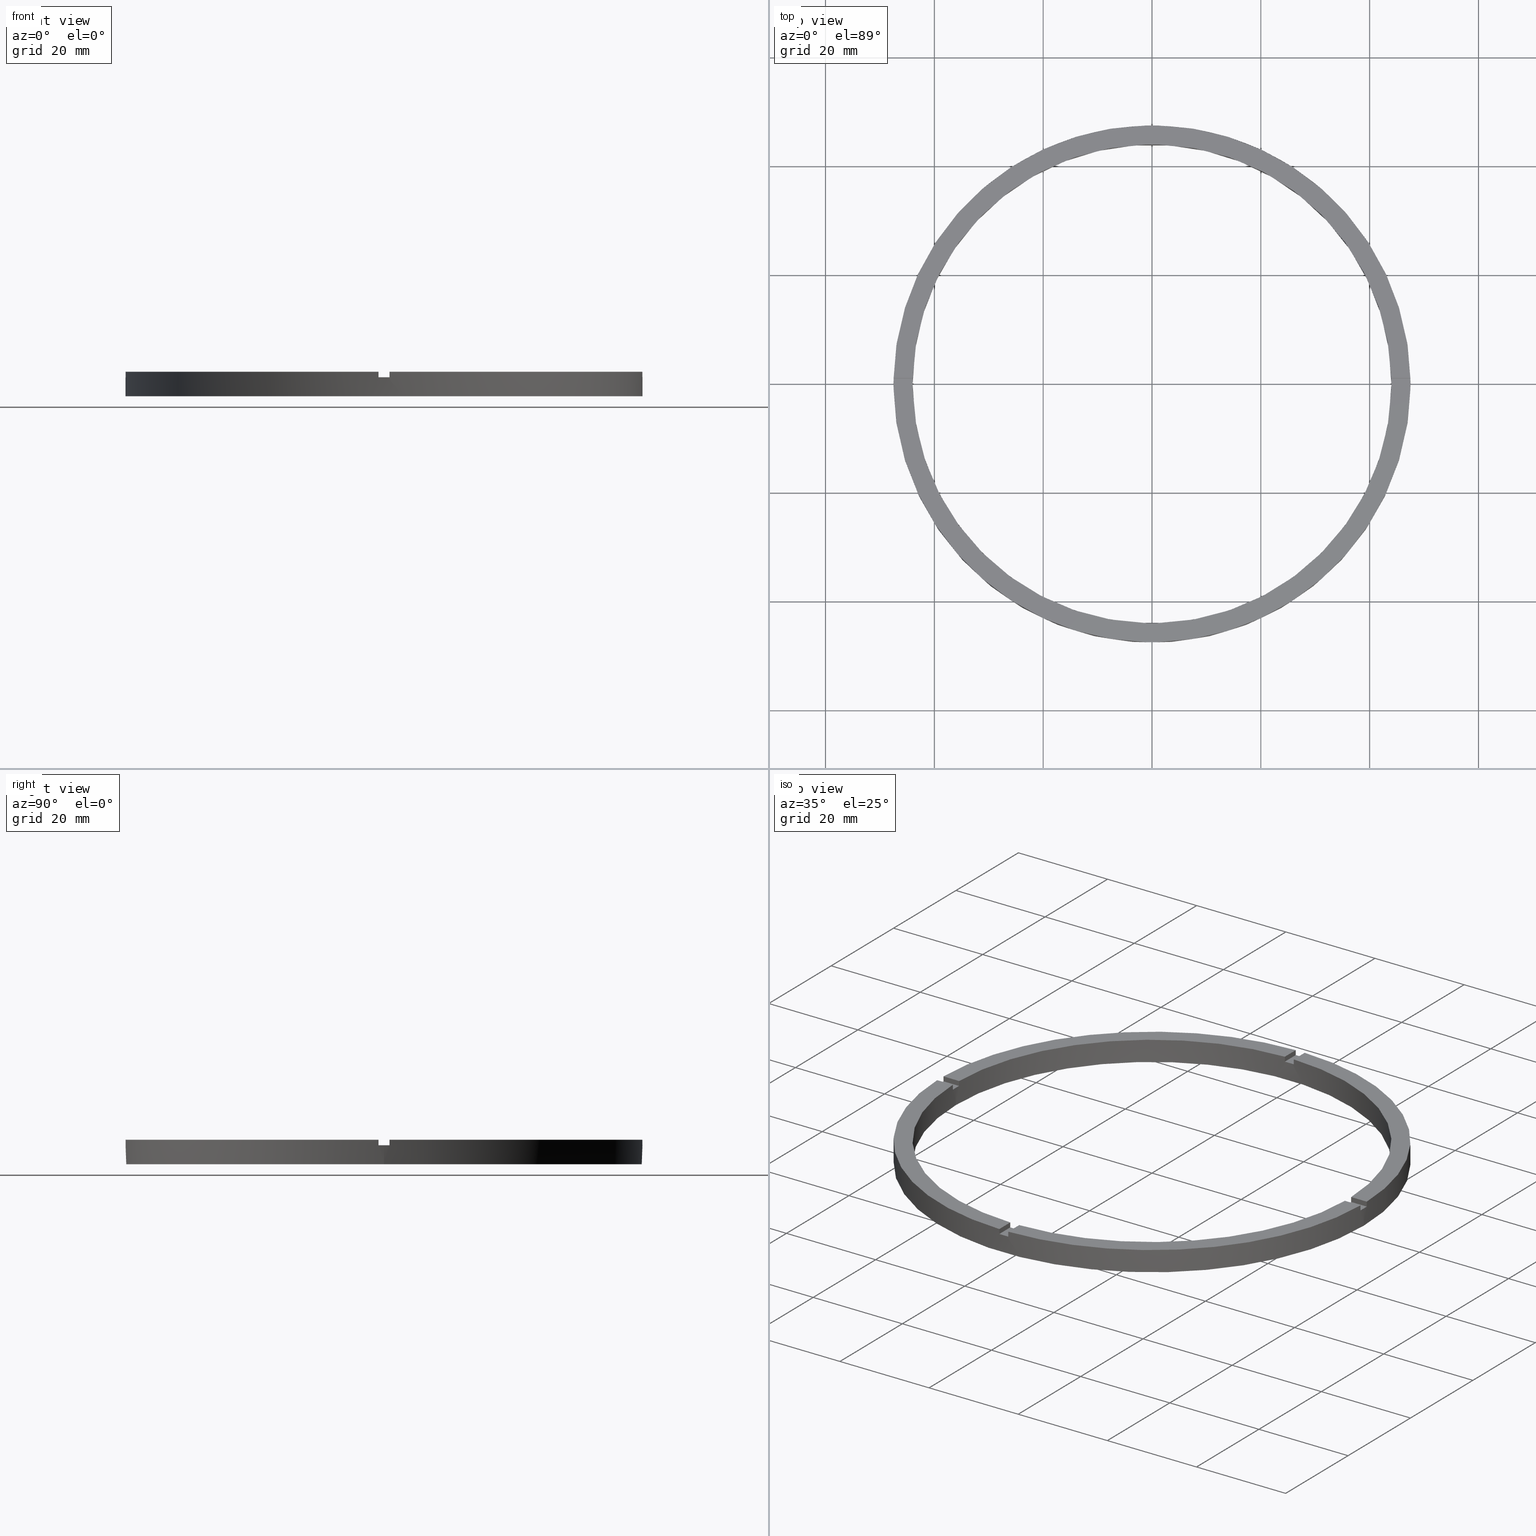
[diagram: canonical four-view strip — front | top / right | iso, engineering-drawing reading convention]
A machine part, canonical four-view strip (front | top / right | iso — engineering-drawing reading convention). The complete STEP part file that produces these views, byte-faithful:
ISO-10303-21;
HEADER;
FILE_DESCRIPTION (( 'STEP AP203' ),
    '1' );
FILE_NAME ('514195.step',
    '2024-12-26T02:46:52',
    ( 'MSI' ),
    ( '' ),
    'SwSTEP 2.0',
    'SolidWorks 2020',
    '' );
FILE_SCHEMA (( 'CONFIG_CONTROL_DESIGN' ));
ENDSEC;

DATA;
#1 = EDGE_CURVE ( 'NONE', #493, #697, #99, .T. ) ;
#2 = CYLINDRICAL_SURFACE ( 'NONE', #44, 44.00000000000000000 ) ;
#3 = DIRECTION ( 'NONE',  ( -0.000000000000000000, -1.000000000000000000, -0.000000000000000000 ) ) ;
#4 = LINE ( 'NONE', #137, #772 ) ;
#5 = CC_DESIGN_APPROVAL ( #605, ( #665 ) ) ;
#6 = EDGE_CURVE ( 'NONE', #697, #479, #370, .T. ) ;
#7 = LINE ( 'NONE', #95, #544 ) ;
#8 = DIRECTION ( 'NONE',  ( 0.000000000000000000, 0.000000000000000000, 1.000000000000000000 ) ) ;
#9 = FACE_OUTER_BOUND ( 'NONE', #210, .T. ) ;
#10 = CARTESIAN_POINT ( 'NONE',  ( -43.98863489584553577, -1.000000000000029976, 3.499999999999999556 ) ) ;
#11 = CARTESIAN_POINT ( 'NONE',  ( -1.000000000000158096, -43.98863489584553577, 4.500000000000000000 ) ) ;
#12 = LINE ( 'NONE', #51, #543 ) ;
#13 = LINE ( 'NONE', #62, #141 ) ;
#14 = PLANE ( 'NONE',  #666 ) ;
#15 = DIRECTION ( 'NONE',  ( 0.000000000000000000, 0.000000000000000000, 1.000000000000000000 ) ) ;
#16 = APPROVAL_DATE_TIME ( #585, #264 ) ;
#17 = PERSON_AND_ORGANIZATION ( #266, #31 ) ;
#18 = CALENDAR_DATE ( 2024, 26, 12 ) ;
#19 = AXIS2_PLACEMENT_3D ( 'NONE', #603, #412, #515 ) ;
#20 = CARTESIAN_POINT ( 'NONE',  ( 43.98863489584553577, -1.000000000000155875, 4.500000000000000000 ) ) ;
#21 = CARTESIAN_POINT ( 'NONE',  ( 0.000000000000000000, 0.000000000000000000, 4.500000000000000000 ) ) ;
#22 = CARTESIAN_POINT ( 'NONE',  ( 0.000000000000000000, 0.000000000000000000, 0.000000000000000000 ) ) ;
#23 = APPROVAL_PERSON_ORGANIZATION ( #298, #519, #548 ) ;
#24 = COORDINATED_UNIVERSAL_TIME_OFFSET ( 8, 0, .AHEAD. ) ;
#25 = DIRECTION ( 'NONE',  ( -0.000000000000000000, -0.000000000000000000, -1.000000000000000000 ) ) ;
#26 = APPROVAL_STATUS ( 'not_yet_approved' ) ;
#27 = CALENDAR_DATE ( 2024, 26, 12 ) ;
#28 = EDGE_CURVE ( 'NONE', #480, #455, #355, .T. ) ;
#29 = CALENDAR_DATE ( 2024, 26, 12 ) ;
#30 = ADVANCED_FACE ( 'NONE', ( #362 ), #188, .F. ) ;
#31 = ORGANIZATION ( 'δָ��', 'δָ��', '' ) ;
#32 = CARTESIAN_POINT ( 'NONE',  ( 0.000000000000000000, 0.000000000000000000, 3.499999999999999556 ) ) ;
#33 = EDGE_CURVE ( 'NONE', #207, #458, #613, .T. ) ;
#34 = COORDINATED_UNIVERSAL_TIME_OFFSET ( 8, 0, .AHEAD. ) ;
#35 = CARTESIAN_POINT ( 'NONE',  ( 0.000000000000000000, 0.000000000000000000, 0.000000000000000000 ) ) ;
#36 = ADVANCED_FACE ( 'NONE', ( #634 ), #652, .T. ) ;
#37 = CARTESIAN_POINT ( 'NONE',  ( 0.000000000000000000, 0.000000000000000000, 3.499999999999999556 ) ) ;
#38 = EDGE_CURVE ( 'NONE', #751, #335, #350, .T. ) ;
#39 = CARTESIAN_POINT ( 'NONE',  ( -47.48947251760120736, 0.9999999999999694689, 4.500000000000000000 ) ) ;
#40 = APPROVAL_PERSON_ORGANIZATION ( #567, #605, #373 ) ;
#41 = CARTESIAN_POINT ( 'NONE',  ( 37.50000000000000000, 0.9999999999998436806, 3.499999999999999556 ) ) ;
#42 = CARTESIAN_POINT ( 'NONE',  ( 0.000000000000000000, 0.000000000000000000, 4.500000000000000000 ) ) ;
#43 = CC_DESIGN_DATE_AND_TIME_ASSIGNMENT ( #551, #152, ( #228 ) ) ;
#44 = AXIS2_PLACEMENT_3D ( 'NONE', #106, #563, #436 ) ;
#45 = DIRECTION ( 'NONE',  ( -0.000000000000000000, -0.000000000000000000, -1.000000000000000000 ) ) ;
#46 = EDGE_CURVE ( 'NONE', #205, #401, #637, .T. ) ;
#47 = PRODUCT_DEFINITION_SHAPE ( 'NONE', 'NONE',  #665 ) ;
#48 = DIRECTION ( 'NONE',  ( 1.000000000000000000, 0.000000000000000000, 0.000000000000000000 ) ) ;
#49 = CARTESIAN_POINT ( 'NONE',  ( 47.48947251760121446, 0.9999999999998443467, 3.499999999999999556 ) ) ;
#50 = CARTESIAN_POINT ( 'NONE',  ( -44.00000000000000000, 0.000000000000000000, 3.499999999999999556 ) ) ;
#51 = CARTESIAN_POINT ( 'NONE',  ( 47.48947251760120736, -1.000000000000155653, 4.500000000000000000 ) ) ;
#52 = CARTESIAN_POINT ( 'NONE',  ( 37.50000000000000000, -1.000000000000156319, 3.499999999999999556 ) ) ;
#53 = PLANE ( 'NONE',  #114 ) ;
#54 = COORDINATED_UNIVERSAL_TIME_OFFSET ( 8, 0, .AHEAD. ) ;
#55 = ADVANCED_FACE ( 'NONE', ( #372 ), #625, .F. ) ;
#56 = CALENDAR_DATE ( 2024, 26, 12 ) ;
#57 = EDGE_CURVE ( 'NONE', #207, #148, #86, .T. ) ;
#58 = CALENDAR_DATE ( 2024, 26, 12 ) ;
#59 = DIRECTION ( 'NONE',  ( 1.000000000000000000, 1.301042606982605074E-16, 0.000000000000000000 ) ) ;
#60 = COORDINATED_UNIVERSAL_TIME_OFFSET ( 8, 0, .AHEAD. ) ;
#61 = AXIS2_PLACEMENT_3D ( 'NONE', #119, #185, #77 ) ;
#62 = CARTESIAN_POINT ( 'NONE',  ( 0.9999999999999735767, 37.50000000000000711, 3.499999999999999556 ) ) ;
#63 = DIRECTION ( 'NONE',  ( -0.000000000000000000, 0.000000000000000000, 1.000000000000000000 ) ) ;
#64 = EDGE_CURVE ( 'NONE', #743, #190, #88, .T. ) ;
#65 = EDGE_LOOP ( 'NONE', ( #498, #501, #688, #471 ) ) ;
#66 = CARTESIAN_POINT ( 'NONE',  ( 0.000000000000000000, 0.000000000000000000, 4.500000000000000000 ) ) ;
#67 = ORIENTED_EDGE ( 'NONE', *, *, #69, .F. ) ;
#68 = ORIENTED_EDGE ( 'NONE', *, *, #64, .T. ) ;
#69 = EDGE_CURVE ( 'NONE', #743, #478, #366, .T. ) ;
#70 = CARTESIAN_POINT ( 'NONE',  ( -47.50000000000000711, 0.000000000000000000, 0.000000000000000000 ) ) ;
#71 = ORIENTED_EDGE ( 'NONE', *, *, #308, .T. ) ;
#72 = ADVANCED_FACE ( 'NONE', ( #105 ), #53, .F. ) ;
#73 = AXIS2_PLACEMENT_3D ( 'NONE', #219, #546, #534 ) ;
#74 = CARTESIAN_POINT ( 'NONE',  ( 0.000000000000000000, 0.000000000000000000, 4.500000000000000000 ) ) ;
#75 = ORIENTED_EDGE ( 'NONE', *, *, #622, .T. ) ;
#76 = DIRECTION ( 'NONE',  ( 1.301042606982605074E-16, -1.000000000000000000, 0.000000000000000000 ) ) ;
#77 = DIRECTION ( 'NONE',  ( 1.000000000000000000, 0.000000000000000000, 0.000000000000000000 ) ) ;
#78 = ORIENTED_EDGE ( 'NONE', *, *, #145, .F. ) ;
#79 = AXIS2_PLACEMENT_3D ( 'NONE', #363, #173, #102 ) ;
#80 = DIRECTION ( 'NONE',  ( 1.000000000000000000, -0.000000000000000000, 0.000000000000000000 ) ) ;
#81 = DIRECTION ( 'NONE',  ( 1.000000000000000000, 0.000000000000000000, 0.000000000000000000 ) ) ;
#82 = EDGE_CURVE ( 'NONE', #444, #192, #626, .T. ) ;
#83 = ORIENTED_EDGE ( 'NONE', *, *, #565, .F. ) ;
#84 = AXIS2_PLACEMENT_3D ( 'NONE', #42, #594, #349 ) ;
#85 = DIRECTION ( 'NONE',  ( 0.000000000000000000, 0.000000000000000000, 1.000000000000000000 ) ) ;
#86 = LINE ( 'NONE', #199, #617 ) ;
#87 = DIRECTION ( 'NONE',  ( 0.000000000000000000, 1.000000000000000000, 0.000000000000000000 ) ) ;
#88 = LINE ( 'NONE', #369, #619 ) ;
#89 = EDGE_CURVE ( 'NONE', #458, #712, #627, .T. ) ;
#90 = CARTESIAN_POINT ( 'NONE',  ( 0.9999999999998419042, -43.98863489584554287, 4.500000000000000000 ) ) ;
#91 = AXIS2_PLACEMENT_3D ( 'NONE', #364, #662, #608 ) ;
#92 = DIRECTION ( 'NONE',  ( 0.000000000000000000, 0.000000000000000000, 1.000000000000000000 ) ) ;
#93 = DIRECTION ( 'NONE',  ( 6.505213034913025371E-17, -1.000000000000000000, 0.000000000000000000 ) ) ;
#94 = VECTOR ( 'NONE', #574, 1000.000000000000000 ) ;
#95 = CARTESIAN_POINT ( 'NONE',  ( 0.9999999999999735767, 37.50000000000000711, 4.500000000000000000 ) ) ;
#96 = ORIENTED_EDGE ( 'NONE', *, *, #638, .F. ) ;
#97 = DIRECTION ( 'NONE',  ( 0.000000000000000000, 0.000000000000000000, 1.000000000000000000 ) ) ;
#98 = FACE_OUTER_BOUND ( 'NONE', #499, .T. ) ;
#99 = LINE ( 'NONE', #176, #610 ) ;
#100 = CARTESIAN_POINT ( 'NONE',  ( 0.000000000000000000, 0.000000000000000000, 4.500000000000000000 ) ) ;
#101 = ADVANCED_FACE ( 'NONE', ( #98 ), #698, .T. ) ;
#102 = DIRECTION ( 'NONE',  ( 1.000000000000000000, 0.000000000000000000, 0.000000000000000000 ) ) ;
#103 = DIRECTION ( 'NONE',  ( 1.000000000000000000, 0.000000000000000000, -0.000000000000000000 ) ) ;
#104 = DIRECTION ( 'NONE',  ( -0.000000000000000000, -0.000000000000000000, -1.000000000000000000 ) ) ;
#105 = FACE_OUTER_BOUND ( 'NONE', #427, .T. ) ;
#106 = CARTESIAN_POINT ( 'NONE',  ( 0.000000000000000000, 0.000000000000000000, 4.500000000000000000 ) ) ;
#107 = CIRCLE ( 'NONE', #486, 44.00000000000000000 ) ;
#108 = CARTESIAN_POINT ( 'NONE',  ( 0.000000000000000000, 0.000000000000000000, 3.499999999999999556 ) ) ;
#109 = EDGE_CURVE ( 'NONE', #186, #397, #118, .T. ) ;
#110 = EDGE_CURVE ( 'NONE', #324, #401, #379, .T. ) ;
#111 = VECTOR ( 'NONE', #268, 1000.000000000000000 ) ;
#112 = CIRCLE ( 'NONE', #79, 47.50000000000000711 ) ;
#113 = LINE ( 'NONE', #494, #143 ) ;
#114 = AXIS2_PLACEMENT_3D ( 'NONE', #132, #59, #763 ) ;
#115 = CARTESIAN_POINT ( 'NONE',  ( -1.000000000000158762, -37.50000000000018474, 3.499999999999999556 ) ) ;
#116 = CIRCLE ( 'NONE', #312, 44.00000000000000000 ) ;
#117 = EDGE_CURVE ( 'NONE', #741, #444, #640, .T. ) ;
#118 = LINE ( 'NONE', #448, #382 ) ;
#119 = CARTESIAN_POINT ( 'NONE',  ( 0.000000000000000000, 0.000000000000000000, 4.500000000000000000 ) ) ;
#120 = CARTESIAN_POINT ( 'NONE',  ( -37.50000000000019185, 0.9999999999999713562, 4.500000000000000000 ) ) ;
#121 = PRODUCT_DEFINITION_FORMATION_WITH_SPECIFIED_SOURCE ( '�κ�', '', #573, .NOT_KNOWN. ) ;
#122 = CARTESIAN_POINT ( 'NONE',  ( -43.98863489584553577, -1.000000000000029976, 4.500000000000000000 ) ) ;
#123 = AXIS2_PLACEMENT_3D ( 'NONE', #284, #80, #270 ) ;
#124 = APPLICATION_CONTEXT ( 'configuration controlled 3d designs of mechanical parts and assemblies' ) ;
#125 = FACE_OUTER_BOUND ( 'NONE', #500, .T. ) ;
#126 = ORIENTED_EDGE ( 'NONE', *, *, #773, .F. ) ;
#127 = CIRCLE ( 'NONE', #285, 44.00000000000000000 ) ;
#128 = VECTOR ( 'NONE', #392, 1000.000000000000000 ) ;
#129 = DIRECTION ( 'NONE',  ( 0.000000000000000000, 0.000000000000000000, 1.000000000000000000 ) ) ;
#130 = AXIS2_PLACEMENT_3D ( 'NONE', #309, #248, #426 ) ;
#131 = CARTESIAN_POINT ( 'NONE',  ( -44.00000000000000000, 0.000000000000000000, 0.000000000000000000 ) ) ;
#132 = CARTESIAN_POINT ( 'NONE',  ( 0.9999999999998412381, -37.50000000000018474, 3.499999999999999556 ) ) ;
#133 = VECTOR ( 'NONE', #435, 1000.000000000000000 ) ;
#134 = EDGE_CURVE ( 'NONE', #347, #204, #643, .T. ) ;
#135 = ORIENTED_EDGE ( 'NONE', *, *, #109, .F. ) ;
#136 = VECTOR ( 'NONE', #393, 1000.000000000000000 ) ;
#137 = CARTESIAN_POINT ( 'NONE',  ( -37.50000000000019185, -1.000000000000028644, 4.500000000000000000 ) ) ;
#138 = AXIS2_PLACEMENT_3D ( 'NONE', #311, #428, #513 ) ;
#139 = CARTESIAN_POINT ( 'NONE',  ( 47.50000000000000711, 5.817072295949929004E-15, 3.499999999999999556 ) ) ;
#140 = VECTOR ( 'NONE', #538, 1000.000000000000000 ) ;
#141 = VECTOR ( 'NONE', #348, 1000.000000000000000 ) ;
#142 = CARTESIAN_POINT ( 'NONE',  ( 0.000000000000000000, 0.000000000000000000, 4.500000000000000000 ) ) ;
#143 = VECTOR ( 'NONE', #647, 1000.000000000000000 ) ;
#144 = VECTOR ( 'NONE', #742, 1000.000000000000000 ) ;
#145 = EDGE_CURVE ( 'NONE', #712, #461, #107, .T. ) ;
#146 = ORIENTED_EDGE ( 'NONE', *, *, #162, .T. ) ;
#147 = CIRCLE ( 'NONE', #722, 47.50000000000000711 ) ;
#148 = VERTEX_POINT ( 'NONE', #656 ) ;
#149 = AXIS2_PLACEMENT_3D ( 'NONE', #226, #291, #759 ) ;
#150 = ORIENTED_EDGE ( 'NONE', *, *, #630, .F. ) ;
#151 = ORIENTED_EDGE ( 'NONE', *, *, #377, .F. ) ;
#152 = DATE_TIME_ROLE ( 'classification_date' ) ;
#153 = EDGE_CURVE ( 'NONE', #741, #479, #112, .T. ) ;
#154 = ADVANCED_FACE ( 'NONE', ( #386 ), #165, .F. ) ;
#155 = DIRECTION ( 'NONE',  ( 1.000000000000000000, 0.000000000000000000, 0.000000000000000000 ) ) ;
#156 = CC_DESIGN_DATE_AND_TIME_ASSIGNMENT ( #313, #618, ( #665 ) ) ;
#157 = EDGE_CURVE ( 'NONE', #148, #743, #381, .T. ) ;
#158 = FACE_OUTER_BOUND ( 'NONE', #477, .T. ) ;
#159 = DIRECTION ( 'NONE',  ( 1.000000000000000000, 0.000000000000000000, 0.000000000000000000 ) ) ;
#160 = DIRECTION ( 'NONE',  ( 1.000000000000000000, 0.000000000000000000, -0.000000000000000000 ) ) ;
#161 = FACE_OUTER_BOUND ( 'NONE', #329, .T. ) ;
#162 = EDGE_CURVE ( 'NONE', #347, #480, #645, .T. ) ;
#163 = DIRECTION ( 'NONE',  ( 0.000000000000000000, 0.000000000000000000, 1.000000000000000000 ) ) ;
#164 = EDGE_LOOP ( 'NONE', ( #506, #216, #223, #733 ) ) ;
#165 = PLANE ( 'NONE',  #229 ) ;
#166 = ORIENTED_EDGE ( 'NONE', *, *, #612, .T. ) ;
#167 = PLANE ( 'NONE',  #138 ) ;
#168 = ORIENTED_EDGE ( 'NONE', *, *, #414, .F. ) ;
#169 = ADVANCED_FACE ( 'NONE', ( #376, #778 ), #260, .F. ) ;
#170 = VERTEX_POINT ( 'NONE', #11 ) ;
#171 = CARTESIAN_POINT ( 'NONE',  ( 47.48947251760121446, 0.9999999999998443467, 4.500000000000000000 ) ) ;
#172 = EDGE_LOOP ( 'NONE', ( #711, #75, #717, #738 ) ) ;
#173 = DIRECTION ( 'NONE',  ( 0.000000000000000000, 0.000000000000000000, 1.000000000000000000 ) ) ;
#174 = ORIENTED_EDGE ( 'NONE', *, *, #325, .T. ) ;
#175 = ORIENTED_EDGE ( 'NONE', *, *, #360, .T. ) ;
#176 = CARTESIAN_POINT ( 'NONE',  ( -43.98863489584554287, 0.9999999999999701350, 4.500000000000000000 ) ) ;
#177 = ORIENTED_EDGE ( 'NONE', *, *, #6, .F. ) ;
#178 = DIRECTION ( 'NONE',  ( 0.000000000000000000, -0.000000000000000000, 1.000000000000000000 ) ) ;
#179 = ORIENTED_EDGE ( 'NONE', *, *, #649, .T. ) ;
#180 = ADVANCED_FACE ( 'NONE', ( #782 ), #2, .F. ) ;
#181 = ORIENTED_EDGE ( 'NONE', *, *, #69, .T. ) ;
#182 = EDGE_LOOP ( 'NONE', ( #748, #181, #495, #238, #194, #487 ) ) ;
#183 = ORIENTED_EDGE ( 'NONE', *, *, #606, .F. ) ;
#184 = ORIENTED_EDGE ( 'NONE', *, *, #28, .T. ) ;
#185 = DIRECTION ( 'NONE',  ( 0.000000000000000000, 0.000000000000000000, 1.000000000000000000 ) ) ;
#186 = VERTEX_POINT ( 'NONE', #171 ) ;
#187 = ORIENTED_EDGE ( 'NONE', *, *, #282, .F. ) ;
#188 = PLANE ( 'NONE',  #315 ) ;
#189 = ORIENTED_EDGE ( 'NONE', *, *, #400, .T. ) ;
#190 = VERTEX_POINT ( 'NONE', #423 ) ;
#191 = ORIENTED_EDGE ( 'NONE', *, *, #399, .F. ) ;
#192 = VERTEX_POINT ( 'NONE', #664 ) ;
#193 = ORIENTED_EDGE ( 'NONE', *, *, #624, .T. ) ;
#194 = ORIENTED_EDGE ( 'NONE', *, *, #33, .F. ) ;
#195 = APPROVAL_STATUS ( 'not_yet_approved' ) ;
#196 = CARTESIAN_POINT ( 'NONE',  ( -47.50000000000000711, 0.000000000000000000, 4.500000000000000000 ) ) ;
#197 = ORIENTED_EDGE ( 'NONE', *, *, #269, .T. ) ;
#198 = ORIENTED_EDGE ( 'NONE', *, *, #457, .T. ) ;
#199 = CARTESIAN_POINT ( 'NONE',  ( 37.50000000000000000, -1.000000000000156319, 3.499999999999999556 ) ) ;
#200 = ORIENTED_EDGE ( 'NONE', *, *, #690, .T. ) ;
#201 = ORIENTED_EDGE ( 'NONE', *, *, #206, .T. ) ;
#202 = VERTEX_POINT ( 'NONE', #70 ) ;
#203 = ORIENTED_EDGE ( 'NONE', *, *, #109, .T. ) ;
#204 = VERTEX_POINT ( 'NONE', #675 ) ;
#205 = VERTEX_POINT ( 'NONE', #321 ) ;
#206 = EDGE_CURVE ( 'NONE', #699, #192, #536, .T. ) ;
#207 = VERTEX_POINT ( 'NONE', #509 ) ;
#208 = ORIENTED_EDGE ( 'NONE', *, *, #325, .F. ) ;
#209 = DIRECTION ( 'NONE',  ( 0.000000000000000000, 0.000000000000000000, 1.000000000000000000 ) ) ;
#210 = EDGE_LOOP ( 'NONE', ( #203, #753, #750, #227 ) ) ;
#211 = DIRECTION ( 'NONE',  ( -0.000000000000000000, -1.000000000000000000, -0.000000000000000000 ) ) ;
#212 = ORIENTED_EDGE ( 'NONE', *, *, #468, .T. ) ;
#213 = VERTEX_POINT ( 'NONE', #521 ) ;
#214 = ORIENTED_EDGE ( 'NONE', *, *, #206, .F. ) ;
#215 = DIRECTION ( 'NONE',  ( 0.000000000000000000, 0.000000000000000000, 1.000000000000000000 ) ) ;
#216 = ORIENTED_EDGE ( 'NONE', *, *, #602, .T. ) ;
#217 = ORIENTED_EDGE ( 'NONE', *, *, #64, .F. ) ;
#218 = VERTEX_POINT ( 'NONE', #660 ) ;
#219 = CARTESIAN_POINT ( 'NONE',  ( 0.000000000000000000, 0.000000000000000000, 4.500000000000000000 ) ) ;
#220 = ORIENTED_EDGE ( 'NONE', *, *, #28, .F. ) ;
#221 = ORIENTED_EDGE ( 'NONE', *, *, #400, .F. ) ;
#222 = DIRECTION ( 'NONE',  ( 1.000000000000000000, 0.000000000000000000, 0.000000000000000000 ) ) ;
#223 = ORIENTED_EDGE ( 'NONE', *, *, #282, .T. ) ;
#224 = ORIENTED_EDGE ( 'NONE', *, *, #685, .T. ) ;
#225 = ORIENTED_EDGE ( 'NONE', *, *, #565, .T. ) ;
#226 = CARTESIAN_POINT ( 'NONE',  ( 0.000000000000000000, 0.000000000000000000, 4.500000000000000000 ) ) ;
#227 = ORIENTED_EDGE ( 'NONE', *, *, #360, .F. ) ;
#228 = SECURITY_CLASSIFICATION ( '', '', #333 ) ;
#229 = AXIS2_PLACEMENT_3D ( 'NONE', #356, #255, #650 ) ;
#230 = ORIENTED_EDGE ( 'NONE', *, *, #157, .F. ) ;
#231 = VERTEX_POINT ( 'NONE', #561 ) ;
#232 = CARTESIAN_POINT ( 'NONE',  ( 0.9999999999999735767, 47.48947251760120736, 4.500000000000000000 ) ) ;
#233 = ORIENTED_EDGE ( 'NONE', *, *, #38, .T. ) ;
#234 = ORIENTED_EDGE ( 'NONE', *, *, #110, .T. ) ;
#235 = ORIENTED_EDGE ( 'NONE', *, *, #38, .F. ) ;
#236 = DIRECTION ( 'NONE',  ( -1.000000000000000000, 0.000000000000000000, 0.000000000000000000 ) ) ;
#237 = ORIENTED_EDGE ( 'NONE', *, *, #82, .T. ) ;
#238 = ORIENTED_EDGE ( 'NONE', *, *, #522, .F. ) ;
#239 = ORIENTED_EDGE ( 'NONE', *, *, #520, .T. ) ;
#240 = PLANE ( 'NONE',  #278 ) ;
#241 = ADVANCED_FACE ( 'NONE', ( #530 ), #433, .F. ) ;
#242 = DIRECTION ( 'NONE',  ( -6.505213034913025371E-17, 1.000000000000000000, 0.000000000000000000 ) ) ;
#243 = DIRECTION ( 'NONE',  ( 1.000000000000000000, 0.000000000000000000, -0.000000000000000000 ) ) ;
#244 = CYLINDRICAL_SURFACE ( 'NONE', #302, 47.50000000000000711 ) ;
#245 = CIRCLE ( 'NONE', #431, 47.50000000000000711 ) ;
#246 = DIRECTION ( 'NONE',  ( 1.000000000000000000, 0.000000000000000000, 0.000000000000000000 ) ) ;
#247 = CIRCLE ( 'NONE', #361, 44.00000000000000000 ) ;
#248 = DIRECTION ( 'NONE',  ( 0.000000000000000000, 0.000000000000000000, 1.000000000000000000 ) ) ;
#249 = DIRECTION ( 'NONE',  ( 1.000000000000000000, 0.000000000000000000, 0.000000000000000000 ) ) ;
#250 = LINE ( 'NONE', #307, #528 ) ;
#251 = CARTESIAN_POINT ( 'NONE',  ( 0.000000000000000000, 0.000000000000000000, 3.499999999999999556 ) ) ;
#252 = AXIS2_PLACEMENT_3D ( 'NONE', #142, #215, #632 ) ;
#253 = DIRECTION ( 'NONE',  ( -0.000000000000000000, -0.000000000000000000, -1.000000000000000000 ) ) ;
#254 = VECTOR ( 'NONE', #464, 1000.000000000000000 ) ;
#255 = DIRECTION ( 'NONE',  ( 1.951563910473907735E-16, -1.000000000000000000, 0.000000000000000000 ) ) ;
#256 = LINE ( 'NONE', #593, #254 ) ;
#257 = DIRECTION ( 'NONE',  ( 1.000000000000000000, 6.505213034913025371E-17, 0.000000000000000000 ) ) ;
#258 = CARTESIAN_POINT ( 'NONE',  ( -1.000000000000026423, 37.50000000000000711, 3.499999999999999556 ) ) ;
#259 = LINE ( 'NONE', #359, #537 ) ;
#260 = PLANE ( 'NONE',  #130 ) ;
#261 = ADVANCED_FACE ( 'NONE', ( #764 ), #331, .T. ) ;
#262 = CARTESIAN_POINT ( 'NONE',  ( 0.000000000000000000, 0.000000000000000000, 3.499999999999999556 ) ) ;
#263 = DIRECTION ( 'NONE',  ( 1.000000000000000000, 0.000000000000000000, 0.000000000000000000 ) ) ;
#264 = APPROVAL ( #26, 'δָ��' ) ;
#265 = AXIS2_PLACEMENT_3D ( 'NONE', #497, #430, #512 ) ;
#266 = PERSON ( 'δָ��', 'δָ��', 'δָ��', ('δָ��'), ('δָ��'), ('δָ��') ) ;
#267 = VECTOR ( 'NONE', #511, 1000.000000000000000 ) ;
#268 = DIRECTION ( 'NONE',  ( -0.000000000000000000, -0.000000000000000000, -1.000000000000000000 ) ) ;
#269 = EDGE_CURVE ( 'NONE', #346, #699, #245, .T. ) ;
#270 = DIRECTION ( 'NONE',  ( 0.000000000000000000, 0.000000000000000000, -1.000000000000000000 ) ) ;
#271 = FACE_OUTER_BOUND ( 'NONE', #336, .T. ) ;
#272 = FACE_OUTER_BOUND ( 'NONE', #456, .T. ) ;
#273 = DIRECTION ( 'NONE',  ( 1.000000000000000000, 0.000000000000000000, 0.000000000000000000 ) ) ;
#274 = CIRCLE ( 'NONE', #73, 47.50000000000000711 ) ;
#275 = CARTESIAN_POINT ( 'NONE',  ( 37.50000000000000000, -1.000000000000156319, 4.500000000000000000 ) ) ;
#276 = VECTOR ( 'NONE', #293, 1000.000000000000000 ) ;
#277 = LINE ( 'NONE', #403, #545 ) ;
#278 = AXIS2_PLACEMENT_3D ( 'NONE', #41, #242, #300 ) ;
#279 = CIRCLE ( 'NONE', #562, 44.00000000000000000 ) ;
#280 = EDGE_CURVE ( 'NONE', #694, #726, #247, .T. ) ;
#281 = DESIGN_CONTEXT ( 'detailed design', #371, 'design' ) ;
#282 = EDGE_CURVE ( 'NONE', #170, #218, #517, .T. ) ;
#283 = LOCAL_TIME ( 10, 46, 52.00000000000000000, #34 ) ;
#284 = CARTESIAN_POINT ( 'NONE',  ( 0.9999999999999735767, 37.50000000000000711, 3.499999999999999556 ) ) ;
#285 = AXIS2_PLACEMENT_3D ( 'NONE', #286, #129, #48 ) ;
#286 = CARTESIAN_POINT ( 'NONE',  ( 0.000000000000000000, 0.000000000000000000, 0.000000000000000000 ) ) ;
#287 = AXIS2_PLACEMENT_3D ( 'NONE', #781, #97, #243 ) ;
#288 = CARTESIAN_POINT ( 'NONE',  ( 43.98863489584554287, 0.9999999999998441247, 4.500000000000000000 ) ) ;
#289 = DIRECTION ( 'NONE',  ( 1.000000000000000000, 0.000000000000000000, 0.000000000000000000 ) ) ;
#290 = CARTESIAN_POINT ( 'NONE',  ( -1.000000000000026423, 37.50000000000000711, 4.500000000000000000 ) ) ;
#291 = DIRECTION ( 'NONE',  ( 0.000000000000000000, 0.000000000000000000, 1.000000000000000000 ) ) ;
#292 = EDGE_CURVE ( 'NONE', #186, #745, #533, .T. ) ;
#293 = DIRECTION ( 'NONE',  ( -0.000000000000000000, -0.000000000000000000, -1.000000000000000000 ) ) ;
#294 = DIRECTION ( 'NONE',  ( 1.000000000000000000, 6.505213034913025371E-17, 0.000000000000000000 ) ) ;
#295 = PERSON_AND_ORGANIZATION ( #266, #31 ) ;
#296 = CARTESIAN_POINT ( 'NONE',  ( -43.98863489584554287, 0.9999999999999701350, 4.500000000000000000 ) ) ;
#297 = COORDINATED_UNIVERSAL_TIME_OFFSET ( 8, 0, .AHEAD. ) ;
#298 = PERSON_AND_ORGANIZATION ( #266, #31 ) ;
#299 = CARTESIAN_POINT ( 'NONE',  ( -47.48947251760120736, -1.000000000000030642, 3.499999999999999556 ) ) ;
#300 = DIRECTION ( 'NONE',  ( -1.000000000000000000, -6.505213034913025371E-17, 0.000000000000000000 ) ) ;
#301 = CARTESIAN_POINT ( 'NONE',  ( 43.98863489584553577, -1.000000000000155875, 4.500000000000000000 ) ) ;
#302 = AXIS2_PLACEMENT_3D ( 'NONE', #558, #253, #604 ) ;
#303 = DIRECTION ( 'NONE',  ( 1.000000000000000000, 0.000000000000000000, 0.000000000000000000 ) ) ;
#304 = EDGE_CURVE ( 'NONE', #493, #510, #259, .T. ) ;
#305 = DIRECTION ( 'NONE',  ( 0.000000000000000000, 0.000000000000000000, 1.000000000000000000 ) ) ;
#306 = DIRECTION ( 'NONE',  ( -0.000000000000000000, -0.000000000000000000, -1.000000000000000000 ) ) ;
#307 = CARTESIAN_POINT ( 'NONE',  ( 0.9999999999998419042, -43.98863489584554287, 4.500000000000000000 ) ) ;
#308 = EDGE_CURVE ( 'NONE', #751, #461, #776, .T. ) ;
#309 = CARTESIAN_POINT ( 'NONE',  ( 0.000000000000000000, 0.000000000000000000, 0.000000000000000000 ) ) ;
#310 = ADVANCED_FACE ( 'NONE', ( #271 ), #244, .T. ) ;
#311 = CARTESIAN_POINT ( 'NONE',  ( -1.000000000000026423, 37.50000000000000711, 3.499999999999999556 ) ) ;
#312 = AXIS2_PLACEMENT_3D ( 'NONE', #108, #507, #249 ) ;
#313 = DATE_AND_TIME ( #58, #314 ) ;
#314 = LOCAL_TIME ( 10, 46, 52.00000000000000000, #54 ) ;
#315 = AXIS2_PLACEMENT_3D ( 'NONE', #725, #556, #560 ) ;
#316 = DIRECTION ( 'NONE',  ( 0.000000000000000000, 0.000000000000000000, 1.000000000000000000 ) ) ;
#317 = DATE_AND_TIME ( #27, #569 ) ;
#318 = DIRECTION ( 'NONE',  ( 0.000000000000000000, 0.000000000000000000, 1.000000000000000000 ) ) ;
#319 = PERSON_AND_ORGANIZATION ( #266, #31 ) ;
#320 = PERSON_AND_ORGANIZATION ( #266, #31 ) ;
#321 = CARTESIAN_POINT ( 'NONE',  ( -47.48947251760120736, -1.000000000000030642, 4.500000000000000000 ) ) ;
#322 = DIRECTION ( 'NONE',  ( 0.000000000000000000, 0.000000000000000000, 1.000000000000000000 ) ) ;
#323 = ORIENTED_EDGE ( 'NONE', *, *, #710, .F. ) ;
#324 = VERTEX_POINT ( 'NONE', #648 ) ;
#325 = EDGE_CURVE ( 'NONE', #694, #455, #250, .T. ) ;
#326 = CARTESIAN_POINT ( 'NONE',  ( 0.000000000000000000, 0.000000000000000000, 3.499999999999999556 ) ) ;
#327 = PERSON_AND_ORGANIZATION_ROLE ( 'design_owner' ) ;
#328 = ORIENTED_EDGE ( 'NONE', *, *, #624, .F. ) ;
#329 = EDGE_LOOP ( 'NONE', ( #734, #490, #225, #221 ) ) ;
#330 = DIRECTION ( 'NONE',  ( -0.000000000000000000, -0.000000000000000000, -1.000000000000000000 ) ) ;
#331 = PLANE ( 'NONE',  #674 ) ;
#332 = ORIENTED_EDGE ( 'NONE', *, *, #304, .F. ) ;
#334 = CARTESIAN_POINT ( 'NONE',  ( -1.000000000000158762, -37.50000000000018474, 3.499999999999999556 ) ) ;
#333 = SECURITY_CLASSIFICATION_LEVEL ( 'unclassified' ) ;
#335 = VERTEX_POINT ( 'NONE', #10 ) ;
#336 = EDGE_LOOP ( 'NONE', ( #67, #68, #179, #328, #323, #212, #410, #692, #476, #340, #701, #175 ) ) ;
#337 = CARTESIAN_POINT ( 'NONE',  ( 43.98863489584554287, 0.9999999999998441247, 3.499999999999999556 ) ) ;
#338 = CARTESIAN_POINT ( 'NONE',  ( -47.48947251760120736, 0.9999999999999694689, 4.500000000000000000 ) ) ;
#339 = DIRECTION ( 'NONE',  ( 0.000000000000000000, 0.000000000000000000, 1.000000000000000000 ) ) ;
#340 = ORIENTED_EDGE ( 'NONE', *, *, #680, .T. ) ;
#341 = AXIS2_PLACEMENT_3D ( 'NONE', #74, #318, #419 ) ;
#342 = DIRECTION ( 'NONE',  ( 0.000000000000000000, -0.000000000000000000, 1.000000000000000000 ) ) ;
#343 = ADVANCED_FACE ( 'NONE', ( #771 ), #540, .F. ) ;
#344 = APPROVAL_STATUS ( 'not_yet_approved' ) ;
#345 = DIRECTION ( 'NONE',  ( -1.301042606982605074E-16, 1.000000000000000000, -0.000000000000000000 ) ) ;
#346 = VERTEX_POINT ( 'NONE', #696 ) ;
#347 = VERTEX_POINT ( 'NONE', #780 ) ;
#348 = DIRECTION ( 'NONE',  ( 0.000000000000000000, 1.000000000000000000, 0.000000000000000000 ) ) ;
#349 = DIRECTION ( 'NONE',  ( 1.000000000000000000, 0.000000000000000000, 0.000000000000000000 ) ) ;
#350 = CIRCLE ( 'NONE', #655, 44.00000000000000000 ) ;
#351 = EDGE_CURVE ( 'NONE', #205, #213, #4, .T. ) ;
#352 = DIRECTION ( 'NONE',  ( 0.000000000000000000, 0.000000000000000000, 1.000000000000000000 ) ) ;
#353 = VECTOR ( 'NONE', #566, 1000.000000000000000 ) ;
#354 = DIRECTION ( 'NONE',  ( -1.000000000000000000, 0.000000000000000000, 0.000000000000000000 ) ) ;
#355 = LINE ( 'NONE', #358, #94 ) ;
#356 = CARTESIAN_POINT ( 'NONE',  ( -37.50000000000019185, -1.000000000000028644, 3.499999999999999556 ) ) ;
#357 = CC_DESIGN_PERSON_AND_ORGANIZATION_ASSIGNMENT ( #295, #532, ( #228 ) ) ;
#358 = CARTESIAN_POINT ( 'NONE',  ( 0.9999999999998412381, -37.50000000000018474, 3.499999999999999556 ) ) ;
#359 = CARTESIAN_POINT ( 'NONE',  ( -37.50000000000019185, 0.9999999999999713562, 3.499999999999999556 ) ) ;
#360 = EDGE_CURVE ( 'NONE', #186, #478, #256, .T. ) ;
#361 = AXIS2_PLACEMENT_3D ( 'NONE', #614, #163, #246 ) ;
#362 = FACE_OUTER_BOUND ( 'NONE', #729, .T. ) ;
#363 = CARTESIAN_POINT ( 'NONE',  ( 0.000000000000000000, 0.000000000000000000, 4.500000000000000000 ) ) ;
#364 = CARTESIAN_POINT ( 'NONE',  ( 0.000000000000000000, 0.000000000000000000, 3.499999999999999556 ) ) ;
#365 = DIRECTION ( 'NONE',  ( 1.000000000000000000, 0.000000000000000000, 0.000000000000000000 ) ) ;
#366 = CIRCLE ( 'NONE', #514, 47.50000000000000711 ) ;
#367 = CARTESIAN_POINT ( 'NONE',  ( -1.000000000000158096, -43.98863489584553577, 4.500000000000000000 ) ) ;
#368 = ORIENTED_EDGE ( 'NONE', *, *, #520, .F. ) ;
#369 = CARTESIAN_POINT ( 'NONE',  ( 47.50000000000000711, 5.817072295949929004E-15, 4.500000000000000000 ) ) ;
#370 = LINE ( 'NONE', #120, #353 ) ;
#371 = APPLICATION_CONTEXT ( 'configuration controlled 3d designs of mechanical parts and assemblies' ) ;
#372 = FACE_OUTER_BOUND ( 'NONE', #65, .T. ) ;
#373 = APPROVAL_ROLE ( '' ) ;
#374 = ADVANCED_FACE ( 'NONE', ( #272 ), #526, .T. ) ;
#375 = AXIS2_PLACEMENT_3D ( 'NONE', #541, #636, #81 ) ;
#376 = FACE_OUTER_BOUND ( 'NONE', #730, .T. ) ;
#377 = EDGE_CURVE ( 'NONE', #691, #745, #7, .T. ) ;
#378 = VECTOR ( 'NONE', #3, 1000.000000000000000 ) ;
#379 = CIRCLE ( 'NONE', #739, 47.50000000000000711 ) ;
#380 = CIRCLE ( 'NONE', #777, 47.50000000000000711 ) ;
#381 = CIRCLE ( 'NONE', #265, 47.50000000000000711 ) ;
#382 = VECTOR ( 'NONE', #531, 1000.000000000000000 ) ;
#383 = VECTOR ( 'NONE', #385, 1000.000000000000000 ) ;
#384 = LINE ( 'NONE', #275, #661 ) ;
#385 = DIRECTION ( 'NONE',  ( 0.000000000000000000, 0.000000000000000000, 1.000000000000000000 ) ) ;
#386 = FACE_OUTER_BOUND ( 'NONE', #172, .T. ) ;
#387 = DIRECTION ( 'NONE',  ( 1.000000000000000000, 0.000000000000000000, 0.000000000000000000 ) ) ;
#388 = LINE ( 'NONE', #367, #646 ) ;
#389 = CC_DESIGN_PERSON_AND_ORGANIZATION_ASSIGNMENT ( #575, #327, ( #573 ) ) ;
#390 = AXIS2_PLACEMENT_3D ( 'NONE', #66, #774, #236 ) ;
#391 = VECTOR ( 'NONE', #306, 1000.000000000000000 ) ;
#392 = DIRECTION ( 'NONE',  ( 0.000000000000000000, 0.000000000000000000, 1.000000000000000000 ) ) ;
#393 = DIRECTION ( 'NONE',  ( 1.301042606982605074E-16, -1.000000000000000000, 0.000000000000000000 ) ) ;
#394 = CARTESIAN_POINT ( 'NONE',  ( 43.98863489584554287, 0.9999999999998441247, 4.500000000000000000 ) ) ;
#395 = CARTESIAN_POINT ( 'NONE',  ( -1.000000000000026423, 47.48947251760120736, 4.500000000000000000 ) ) ;
#396 = AXIS2_PLACEMENT_3D ( 'NONE', #115, #746, #76 ) ;
#397 = VERTEX_POINT ( 'NONE', #394 ) ;
#398 = LINE ( 'NONE', #338, #383 ) ;
#399 = EDGE_CURVE ( 'NONE', #205, #218, #274, .T. ) ;
#400 = EDGE_CURVE ( 'NONE', #148, #204, #12, .T. ) ;
#401 = VERTEX_POINT ( 'NONE', #299 ) ;
#402 = CIRCLE ( 'NONE', #61, 44.00000000000000000 ) ;
#403 = CARTESIAN_POINT ( 'NONE',  ( 0.9999999999999735767, 43.98863489584554287, 4.500000000000000000 ) ) ;
#404 = CARTESIAN_POINT ( 'NONE',  ( -1.000000000000157652, -47.48947251760120736, 3.499999999999999556 ) ) ;
#405 = LINE ( 'NONE', #334, #136 ) ;
#406 = LINE ( 'NONE', #196, #421 ) ;
#407 = ADVANCED_FACE ( 'NONE', ( #547 ), #597, .T. ) ;
#408 = VECTOR ( 'NONE', #345, 1000.000000000000000 ) ;
#409 = CARTESIAN_POINT ( 'NONE',  ( 0.9999999999998419042, -43.98863489584554287, 3.499999999999999556 ) ) ;
#410 = ORIENTED_EDGE ( 'NONE', *, *, #153, .F. ) ;
#411 = ADVANCED_FACE ( 'NONE', ( #9 ), #240, .F. ) ;
#412 = DIRECTION ( 'NONE',  ( 0.000000000000000000, 0.000000000000000000, 1.000000000000000000 ) ) ;
#413 = LINE ( 'NONE', #122, #133 ) ;
#414 = EDGE_CURVE ( 'NONE', #397, #496, #542, .T. ) ;
#415 = CIRCLE ( 'NONE', #446, 47.50000000000000711 ) ;
#416 = DIRECTION ( 'NONE',  ( -1.000000000000000000, -1.951563910473907735E-16, 0.000000000000000000 ) ) ;
#417 = LINE ( 'NONE', #564, #111 ) ;
#418 = VECTOR ( 'NONE', #623, 1000.000000000000000 ) ;
#419 = DIRECTION ( 'NONE',  ( 1.000000000000000000, 0.000000000000000000, -0.000000000000000000 ) ) ;
#420 = EDGE_CURVE ( 'NONE', #231, #691, #277, .T. ) ;
#421 = VECTOR ( 'NONE', #330, 1000.000000000000000 ) ;
#422 = ORIENTED_EDGE ( 'NONE', *, *, #46, .T. ) ;
#423 = CARTESIAN_POINT ( 'NONE',  ( 47.50000000000000711, 5.817072295949929004E-15, 0.000000000000000000 ) ) ;
#424 = CARTESIAN_POINT ( 'NONE',  ( -1.000000000000158762, -37.50000000000018474, 4.500000000000000000 ) ) ;
#425 = FACE_OUTER_BOUND ( 'NONE', #737, .T. ) ;
#426 = DIRECTION ( 'NONE',  ( 1.000000000000000000, 0.000000000000000000, -0.000000000000000000 ) ) ;
#427 = EDGE_LOOP ( 'NONE', ( #508, #174, #220, #732 ) ) ;
#428 = DIRECTION ( 'NONE',  ( -1.000000000000000000, 0.000000000000000000, 0.000000000000000000 ) ) ;
#429 = CIRCLE ( 'NONE', #535, 44.00000000000000000 ) ;
#430 = DIRECTION ( 'NONE',  ( 0.000000000000000000, 0.000000000000000000, 1.000000000000000000 ) ) ;
#431 = AXIS2_PLACEMENT_3D ( 'NONE', #32, #178, #365 ) ;
#432 = CARTESIAN_POINT ( 'NONE',  ( -47.48947251760120736, -1.000000000000030642, 4.500000000000000000 ) ) ;
#433 = PLANE ( 'NONE',  #396 ) ;
#434 = CIRCLE ( 'NONE', #84, 44.00000000000000000 ) ;
#435 = DIRECTION ( 'NONE',  ( -0.000000000000000000, -0.000000000000000000, -1.000000000000000000 ) ) ;
#436 = DIRECTION ( 'NONE',  ( -1.000000000000000000, 0.000000000000000000, 0.000000000000000000 ) ) ;
#437 = CARTESIAN_POINT ( 'NONE',  ( 37.50000000000000000, 0.9999999999998436806, 3.499999999999999556 ) ) ;
#438 = CIRCLE ( 'NONE', #375, 47.50000000000000711 ) ;
#439 = ORIENTED_EDGE ( 'NONE', *, *, #351, .F. ) ;
#440 = CARTESIAN_POINT ( 'NONE',  ( 0.000000000000000000, 0.000000000000000000, 3.499999999999999556 ) ) ;
#441 = ORIENTED_EDGE ( 'NONE', *, *, #304, .T. ) ;
#442 = EDGE_CURVE ( 'NONE', #231, #192, #279, .T. ) ;
#443 = PLANE ( 'NONE',  #571 ) ;
#444 = VERTEX_POINT ( 'NONE', #686 ) ;
#445 = ORIENTED_EDGE ( 'NONE', *, *, #602, .F. ) ;
#446 = AXIS2_PLACEMENT_3D ( 'NONE', #639, #682, #387 ) ;
#447 = ORIENTED_EDGE ( 'NONE', *, *, #134, .F. ) ;
#448 = CARTESIAN_POINT ( 'NONE',  ( 37.50000000000000000, 0.9999999999998436806, 4.500000000000000000 ) ) ;
#449 = ORIENTED_EDGE ( 'NONE', *, *, #280, .F. ) ;
#450 = EDGE_CURVE ( 'NONE', #231, #346, #13, .T. ) ;
#451 = ORIENTED_EDGE ( 'NONE', *, *, #420, .F. ) ;
#452 = ORIENTED_EDGE ( 'NONE', *, *, #638, .T. ) ;
#453 = ORIENTED_EDGE ( 'NONE', *, *, #308, .F. ) ;
#454 = DIRECTION ( 'NONE',  ( 0.000000000000000000, 0.000000000000000000, 1.000000000000000000 ) ) ;
#455 = VERTEX_POINT ( 'NONE', #409 ) ;
#456 = EDGE_LOOP ( 'NONE', ( #217, #230, #189, #447, #146, #368, #200, #191, #422, #713, #193, #736 ) ) ;
#457 = EDGE_CURVE ( 'NONE', #401, #335, #113, .T. ) ;
#458 = VERTEX_POINT ( 'NONE', #706 ) ;
#459 = ORIENTED_EDGE ( 'NONE', *, *, #280, .T. ) ;
#460 = CARTESIAN_POINT ( 'NONE',  ( -1.000000000000157652, -47.48947251760120736, 4.500000000000000000 ) ) ;
#461 = VERTEX_POINT ( 'NONE', #131 ) ;
#462 = ORIENTED_EDGE ( 'NONE', *, *, #649, .F. ) ;
#463 = ORIENTED_EDGE ( 'NONE', *, *, #153, .T. ) ;
#464 = DIRECTION ( 'NONE',  ( -0.000000000000000000, -0.000000000000000000, -1.000000000000000000 ) ) ;
#465 = DIRECTION ( 'NONE',  ( 1.000000000000000000, 0.000000000000000000, 0.000000000000000000 ) ) ;
#466 = EDGE_LOOP ( 'NONE', ( #740, #237, #214, #475 ) ) ;
#467 = CC_DESIGN_PERSON_AND_ORGANIZATION_ASSIGNMENT ( #320, #749, ( #665 ) ) ;
#468 = EDGE_CURVE ( 'NONE', #510, #479, #398, .T. ) ;
#469 = ORIENTED_EDGE ( 'NONE', *, *, #442, .T. ) ;
#470 = CARTESIAN_POINT ( 'NONE',  ( 0.9999999999999735767, 47.48947251760120736, 4.500000000000000000 ) ) ;
#471 = ORIENTED_EDGE ( 'NONE', *, *, #680, .F. ) ;
#472 = ORIENTED_EDGE ( 'NONE', *, *, #1, .T. ) ;
#473 = EDGE_LOOP ( 'NONE', ( #689, #589, #474, #453, #233, #707, #166, #445, #693, #208, #459, #183 ) ) ;
#474 = ORIENTED_EDGE ( 'NONE', *, *, #669, .F. ) ;
#475 = ORIENTED_EDGE ( 'NONE', *, *, #596, .F. ) ;
#476 = ORIENTED_EDGE ( 'NONE', *, *, #269, .F. ) ;
#477 = EDGE_LOOP ( 'NONE', ( #197, #201, #491, #703 ) ) ;
#478 = VERTEX_POINT ( 'NONE', #49 ) ;
#479 = VERTEX_POINT ( 'NONE', #39 ) ;
#480 = VERTEX_POINT ( 'NONE', #529 ) ;
#481 = PERSON_AND_ORGANIZATION_ROLE ( 'design_supplier' ) ;
#482 = ORIENTED_EDGE ( 'NONE', *, *, #731, .T. ) ;
#483 = DIRECTION ( 'NONE',  ( -0.000000000000000000, -0.000000000000000000, -1.000000000000000000 ) ) ;
#484 = CARTESIAN_POINT ( 'NONE',  ( 0.000000000000000000, 0.000000000000000000, 3.499999999999999556 ) ) ;
#485 = EDGE_LOOP ( 'NONE', ( #187, #678, #439, #724 ) ) ;
#486 = AXIS2_PLACEMENT_3D ( 'NONE', #708, #316, #505 ) ;
#487 = ORIENTED_EDGE ( 'NONE', *, *, #57, .T. ) ;
#488 = EDGE_LOOP ( 'NONE', ( #676, #463, #177, #709 ) ) ;
#489 = ORIENTED_EDGE ( 'NONE', *, *, #292, .T. ) ;
#490 = ORIENTED_EDGE ( 'NONE', *, *, #606, .T. ) ;
#491 = ORIENTED_EDGE ( 'NONE', *, *, #442, .F. ) ;
#492 = ORIENTED_EDGE ( 'NONE', *, *, #710, .T. ) ;
#493 = VERTEX_POINT ( 'NONE', #760 ) ;
#494 = CARTESIAN_POINT ( 'NONE',  ( -37.50000000000019185, -1.000000000000028644, 3.499999999999999556 ) ) ;
#495 = ORIENTED_EDGE ( 'NONE', *, *, #516, .T. ) ;
#496 = VERTEX_POINT ( 'NONE', #337 ) ;
#497 = CARTESIAN_POINT ( 'NONE',  ( 0.000000000000000000, 0.000000000000000000, 3.499999999999999556 ) ) ;
#498 = ORIENTED_EDGE ( 'NONE', *, *, #450, .F. ) ;
#499 = EDGE_LOOP ( 'NONE', ( #492, #234, #198, #235, #754, #441 ) ) ;
#500 = EDGE_LOOP ( 'NONE', ( #83, #449, #150, #695 ) ) ;
#501 = ORIENTED_EDGE ( 'NONE', *, *, #420, .T. ) ;
#502 = CC_DESIGN_SECURITY_CLASSIFICATION ( #228, ( #121 ) ) ;
#503 = DIRECTION ( 'NONE',  ( -0.000000000000000000, -0.000000000000000000, -1.000000000000000000 ) ) ;
#504 = ORIENTED_EDGE ( 'NONE', *, *, #599, .F. ) ;
#505 = DIRECTION ( 'NONE',  ( 1.000000000000000000, 0.000000000000000000, 0.000000000000000000 ) ) ;
#506 = ORIENTED_EDGE ( 'NONE', *, *, #685, .F. ) ;
#507 = DIRECTION ( 'NONE',  ( 0.000000000000000000, 0.000000000000000000, 1.000000000000000000 ) ) ;
#508 = ORIENTED_EDGE ( 'NONE', *, *, #630, .T. ) ;
#509 = CARTESIAN_POINT ( 'NONE',  ( 43.98863489584553577, -1.000000000000155875, 3.499999999999999556 ) ) ;
#510 = VERTEX_POINT ( 'NONE', #683 ) ;
#511 = DIRECTION ( 'NONE',  ( 1.301042606982605074E-16, -1.000000000000000000, 0.000000000000000000 ) ) ;
#512 = DIRECTION ( 'NONE',  ( 1.000000000000000000, 0.000000000000000000, 0.000000000000000000 ) ) ;
#513 = DIRECTION ( 'NONE',  ( 0.000000000000000000, 0.000000000000000000, 1.000000000000000000 ) ) ;
#514 = AXIS2_PLACEMENT_3D ( 'NONE', #756, #209, #289 ) ;
#515 = DIRECTION ( 'NONE',  ( 1.000000000000000000, 0.000000000000000000, 0.000000000000000000 ) ) ;
#516 = EDGE_CURVE ( 'NONE', #478, #496, #654, .T. ) ;
#517 = LINE ( 'NONE', #424, #267 ) ;
#518 = ADVANCED_FACE ( 'NONE', ( #642 ), #14, .T. ) ;
#519 = APPROVAL ( #344, 'δָ��' ) ;
#520 = EDGE_CURVE ( 'NONE', #720, #480, #147, .T. ) ;
#521 = CARTESIAN_POINT ( 'NONE',  ( -43.98863489584553577, -1.000000000000029976, 4.500000000000000000 ) ) ;
#522 = EDGE_CURVE ( 'NONE', #458, #496, #116, .T. ) ;
#523 = APPLICATION_PROTOCOL_DEFINITION ( 'international standard', 'config_control_design', 1994, #371 ) ;
#524 = APPROVAL_ROLE ( '' ) ;
#525 = DIRECTION ( 'NONE',  ( -0.000000000000000000, -0.000000000000000000, -1.000000000000000000 ) ) ;
#526 = CYLINDRICAL_SURFACE ( 'NONE', #762, 47.50000000000000711 ) ;
#527 = DIRECTION ( 'NONE',  ( 0.000000000000000000, -0.000000000000000000, 1.000000000000000000 ) ) ;
#528 = VECTOR ( 'NONE', #104, 1000.000000000000000 ) ;
#529 = CARTESIAN_POINT ( 'NONE',  ( 0.9999999999998423483, -47.48947251760121446, 3.499999999999999556 ) ) ;
#530 = FACE_OUTER_BOUND ( 'NONE', #164, .T. ) ;
#531 = DIRECTION ( 'NONE',  ( -1.000000000000000000, -6.505213034913025371E-17, -0.000000000000000000 ) ) ;
#532 = PERSON_AND_ORGANIZATION_ROLE ( 'classification_officer' ) ;
#533 = CIRCLE ( 'NONE', #609, 47.50000000000000711 ) ;
#534 = DIRECTION ( 'NONE',  ( 1.000000000000000000, 0.000000000000000000, 0.000000000000000000 ) ) ;
#535 = AXIS2_PLACEMENT_3D ( 'NONE', #484, #339, #465 ) ;
#536 = LINE ( 'NONE', #258, #769 ) ;
#537 = VECTOR ( 'NONE', #416, 1000.000000000000000 ) ;
#538 = DIRECTION ( 'NONE',  ( 0.000000000000000000, 0.000000000000000000, 1.000000000000000000 ) ) ;
#539 = MANIFOLD_SOLID_BREP ( '�г�-����1', #755 ) ;
#540 = CYLINDRICAL_SURFACE ( 'NONE', #390, 44.00000000000000000 ) ;
#541 = CARTESIAN_POINT ( 'NONE',  ( 0.000000000000000000, 0.000000000000000000, 0.000000000000000000 ) ) ;
#542 = LINE ( 'NONE', #288, #276 ) ;
#543 = VECTOR ( 'NONE', #92, 1000.000000000000000 ) ;
#544 = VECTOR ( 'NONE', #87, 1000.000000000000000 ) ;
#545 = VECTOR ( 'NONE', #454, 1000.000000000000000 ) ;
#546 = DIRECTION ( 'NONE',  ( 0.000000000000000000, 0.000000000000000000, 1.000000000000000000 ) ) ;
#547 = FACE_OUTER_BOUND ( 'NONE', #485, .T. ) ;
#548 = APPROVAL_ROLE ( '' ) ;
#549 = AXIS2_PLACEMENT_3D ( 'NONE', #21, #8, #160 ) ;
#550 = PERSON_AND_ORGANIZATION ( #266, #31 ) ;
#551 = DATE_AND_TIME ( #18, #283 ) ;
#552 = CARTESIAN_POINT ( 'NONE',  ( 0.000000000000000000, 0.000000000000000000, 4.500000000000000000 ) ) ;
#553 = CC_DESIGN_PERSON_AND_ORGANIZATION_ASSIGNMENT ( #550, #580, ( #121 ) ) ;
#554 = AXIS2_PLACEMENT_3D ( 'NONE', #552, #586, #601 ) ;
#555 = LOCAL_TIME ( 10, 46, 52.00000000000000000, #24 ) ;
#556 = DIRECTION ( 'NONE',  ( -1.951563910473907735E-16, 1.000000000000000000, 0.000000000000000000 ) ) ;
#557 = APPROVAL_DATE_TIME ( #568, #519 ) ;
#558 = CARTESIAN_POINT ( 'NONE',  ( 0.000000000000000000, 0.000000000000000000, 4.500000000000000000 ) ) ;
#559 = CARTESIAN_POINT ( 'NONE',  ( 0.000000000000000000, 0.000000000000000000, 3.499999999999999556 ) ) ;
#560 = DIRECTION ( 'NONE',  ( -1.000000000000000000, -1.951563910473907735E-16, 0.000000000000000000 ) ) ;
#561 = CARTESIAN_POINT ( 'NONE',  ( 0.9999999999999735767, 43.98863489584554287, 3.499999999999999556 ) ) ;
#562 = AXIS2_PLACEMENT_3D ( 'NONE', #635, #342, #303 ) ;
#563 = DIRECTION ( 'NONE',  ( -0.000000000000000000, -0.000000000000000000, -1.000000000000000000 ) ) ;
#564 = CARTESIAN_POINT ( 'NONE',  ( -1.000000000000026423, 47.48947251760120736, 4.500000000000000000 ) ) ;
#565 = EDGE_CURVE ( 'NONE', #726, #204, #384, .T. ) ;
#566 = DIRECTION ( 'NONE',  ( -1.000000000000000000, -1.951563910473907735E-16, 0.000000000000000000 ) ) ;
#567 = PERSON_AND_ORGANIZATION ( #266, #31 ) ;
#568 = DATE_AND_TIME ( #29, #555 ) ;
#569 = LOCAL_TIME ( 10, 46, 52.00000000000000000, #297 ) ;
#570 = SHAPE_DEFINITION_REPRESENTATION ( #47, #607 ) ;
#571 = AXIS2_PLACEMENT_3D ( 'NONE', #326, #527, #579 ) ;
#572 = ADVANCED_FACE ( 'NONE', ( #125 ), #611, .T. ) ;
#573 = PRODUCT ( '514195', '514195', '', ( #577 ) ) ;
#574 = DIRECTION ( 'NONE',  ( -1.301042606982605074E-16, 1.000000000000000000, -0.000000000000000000 ) ) ;
#575 = PERSON_AND_ORGANIZATION ( #266, #31 ) ;
#576 =( NAMED_UNIT ( * ) PLANE_ANGLE_UNIT ( ) SI_UNIT ( $, .RADIAN. ) );
#577 = MECHANICAL_CONTEXT ( 'NONE', #124, 'mechanical' ) ;
#578 = ADVANCED_FACE ( 'NONE', ( #644 ), #167, .F. ) ;
#579 = DIRECTION ( 'NONE',  ( 1.000000000000000000, 0.000000000000000000, -0.000000000000000000 ) ) ;
#580 = PERSON_AND_ORGANIZATION_ROLE ( 'creator' ) ;
#581 = APPROVAL_PERSON_ORGANIZATION ( #319, #264, #524 ) ;
#582 = LOCAL_TIME ( 10, 46, 52.00000000000000000, #60 ) ;
#583 = APPROVAL_DATE_TIME ( #317, #605 ) ;
#584 = CARTESIAN_POINT ( 'NONE',  ( 0.9999999999998412381, -37.50000000000018474, 4.500000000000000000 ) ) ;
#585 = DATE_AND_TIME ( #56, #582 ) ;
#586 = DIRECTION ( 'NONE',  ( 0.000000000000000000, 0.000000000000000000, 1.000000000000000000 ) ) ;
#587 = CARTESIAN_POINT ( 'NONE',  ( -1.000000000000158096, -43.98863489584553577, 3.499999999999999556 ) ) ;
#588 = CARTESIAN_POINT ( 'NONE',  ( 0.9999999999999735767, 43.98863489584554287, 4.500000000000000000 ) ) ;
#589 = ORIENTED_EDGE ( 'NONE', *, *, #89, .T. ) ;
#590 = DIRECTION ( 'NONE',  ( 1.000000000000000000, 1.951563910473907735E-16, -0.000000000000000000 ) ) ;
#591 = CC_DESIGN_APPROVAL ( #519, ( #228 ) ) ;
#592 = CARTESIAN_POINT ( 'NONE',  ( -1.000000000000026423, 47.48947251760120736, 3.499999999999999556 ) ) ;
#593 = CARTESIAN_POINT ( 'NONE',  ( 47.48947251760121446, 0.9999999999998443467, 4.500000000000000000 ) ) ;
#594 = DIRECTION ( 'NONE',  ( 0.000000000000000000, 0.000000000000000000, 1.000000000000000000 ) ) ;
#595 = ORIENTED_EDGE ( 'NONE', *, *, #82, .F. ) ;
#596 = EDGE_CURVE ( 'NONE', #741, #699, #417, .T. ) ;
#597 = PLANE ( 'NONE',  #554 ) ;
#598 = DIRECTION ( 'NONE',  ( -0.000000000000000000, -0.000000000000000000, -1.000000000000000000 ) ) ;
#599 = EDGE_CURVE ( 'NONE', #718, #455, #670, .T. ) ;
#600 = EDGE_LOOP ( 'NONE', ( #673, #721, #168, #452, #451, #469, #595, #482, #704, #723, #71, #78 ) ) ;
#601 = DIRECTION ( 'NONE',  ( 1.000000000000000000, 0.000000000000000000, -0.000000000000000000 ) ) ;
#602 = EDGE_CURVE ( 'NONE', #718, #170, #388, .T. ) ;
#603 = CARTESIAN_POINT ( 'NONE',  ( 0.000000000000000000, 0.000000000000000000, 4.500000000000000000 ) ) ;
#604 = DIRECTION ( 'NONE',  ( -1.000000000000000000, 0.000000000000000000, 0.000000000000000000 ) ) ;
#605 = APPROVAL ( #195, 'δָ��' ) ;
#606 = EDGE_CURVE ( 'NONE', #207, #726, #671, .T. ) ;
#607 = ADVANCED_BREP_SHAPE_REPRESENTATION ( '514195', ( #539, #653 ), #681 ) ;
#608 = DIRECTION ( 'NONE',  ( 1.000000000000000000, 0.000000000000000000, 0.000000000000000000 ) ) ;
#609 = AXIS2_PLACEMENT_3D ( 'NONE', #100, #305, #155 ) ;
#610 = VECTOR ( 'NONE', #352, 1000.000000000000000 ) ;
#611 = PLANE ( 'NONE',  #341 ) ;
#612 = EDGE_CURVE ( 'NONE', #213, #170, #402, .T. ) ;
#613 = CIRCLE ( 'NONE', #779, 44.00000000000000000 ) ;
#614 = CARTESIAN_POINT ( 'NONE',  ( 0.000000000000000000, 0.000000000000000000, 4.500000000000000000 ) ) ;
#615 = VECTOR ( 'NONE', #25, 1000.000000000000000 ) ;
#616 = APPLICATION_PROTOCOL_DEFINITION ( 'international standard', 'config_control_design', 1994, #124 ) ;
#617 = VECTOR ( 'NONE', #761, 1000.000000000000000 ) ;
#618 = DATE_TIME_ROLE ( 'creation_date' ) ;
#619 = VECTOR ( 'NONE', #525, 1000.000000000000000 ) ;
#620 = DIRECTION ( 'NONE',  ( 0.000000000000000000, 0.000000000000000000, 1.000000000000000000 ) ) ;
#621 = PRODUCT_RELATED_PRODUCT_CATEGORY ( 'detail', '', ( #573 ) ) ;
#622 = EDGE_CURVE ( 'NONE', #213, #335, #413, .T. ) ;
#623 = DIRECTION ( 'NONE',  ( -1.000000000000000000, -6.505213034913025371E-17, -0.000000000000000000 ) ) ;
#624 = EDGE_CURVE ( 'NONE', #324, #202, #406, .T. ) ;
#625 = PLANE ( 'NONE',  #123 ) ;
#626 = LINE ( 'NONE', #684, #631 ) ;
#627 = LINE ( 'NONE', #770, #629 ) ;
#628 = DIRECTION ( 'NONE',  ( 1.000000000000000000, 0.000000000000000000, 0.000000000000000000 ) ) ;
#629 = VECTOR ( 'NONE', #598, 1000.000000000000000 ) ;
#630 = EDGE_CURVE ( 'NONE', #347, #694, #672, .T. ) ;
#631 = VECTOR ( 'NONE', #45, 1000.000000000000000 ) ;
#632 = DIRECTION ( 'NONE',  ( 1.000000000000000000, 0.000000000000000000, -0.000000000000000000 ) ) ;
#633 = CC_DESIGN_PERSON_AND_ORGANIZATION_ASSIGNMENT ( #17, #481, ( #121 ) ) ;
#634 = FACE_OUTER_BOUND ( 'NONE', #488, .T. ) ;
#635 = CARTESIAN_POINT ( 'NONE',  ( 0.000000000000000000, 0.000000000000000000, 3.499999999999999556 ) ) ;
#636 = DIRECTION ( 'NONE',  ( 0.000000000000000000, 0.000000000000000000, 1.000000000000000000 ) ) ;
#637 = LINE ( 'NONE', #432, #615 ) ;
#638 = EDGE_CURVE ( 'NONE', #397, #691, #663, .T. ) ;
#639 = CARTESIAN_POINT ( 'NONE',  ( 0.000000000000000000, 0.000000000000000000, 3.499999999999999556 ) ) ;
#640 = LINE ( 'NONE', #290, #378 ) ;
#641 = ADVANCED_FACE ( 'NONE', ( #425 ), #679, .T. ) ;
#642 = FACE_OUTER_BOUND ( 'NONE', #182, .T. ) ;
#643 = CIRCLE ( 'NONE', #19, 47.50000000000000711 ) ;
#644 = FACE_OUTER_BOUND ( 'NONE', #466, .T. ) ;
#645 = LINE ( 'NONE', #719, #391 ) ;
#646 = VECTOR ( 'NONE', #735, 1000.000000000000000 ) ;
#647 = DIRECTION ( 'NONE',  ( 1.000000000000000000, 1.951563910473907735E-16, -0.000000000000000000 ) ) ;
#648 = CARTESIAN_POINT ( 'NONE',  ( -47.50000000000000711, 0.000000000000000000, 3.499999999999999556 ) ) ;
#649 = EDGE_CURVE ( 'NONE', #190, #202, #380, .T. ) ;
#650 = DIRECTION ( 'NONE',  ( 1.000000000000000000, 1.951563910473907735E-16, 0.000000000000000000 ) ) ;
#651 = EDGE_LOOP ( 'NONE', ( #728, #715 ) ) ;
#652 = PLANE ( 'NONE',  #549 ) ;
#653 = AXIS2_PLACEMENT_3D ( 'NONE', #22, #322, #273 ) ;
#654 = LINE ( 'NONE', #437, #418 ) ;
#655 = AXIS2_PLACEMENT_3D ( 'NONE', #251, #15, #263 ) ;
#656 = CARTESIAN_POINT ( 'NONE',  ( 47.48947251760120736, -1.000000000000155653, 3.499999999999999556 ) ) ;
#657 = ORIENTED_EDGE ( 'NONE', *, *, #468, .F. ) ;
#658 = LINE ( 'NONE', #470, #128 ) ;
#659 = DIRECTION ( 'NONE',  ( 0.000000000000000000, 0.000000000000000000, 1.000000000000000000 ) ) ;
#660 = CARTESIAN_POINT ( 'NONE',  ( -1.000000000000157652, -47.48947251760120736, 4.500000000000000000 ) ) ;
#661 = VECTOR ( 'NONE', #257, 1000.000000000000000 ) ;
#662 = DIRECTION ( 'NONE',  ( -0.000000000000000000, 0.000000000000000000, 1.000000000000000000 ) ) ;
#663 = CIRCLE ( 'NONE', #149, 44.00000000000000000 ) ;
#664 = CARTESIAN_POINT ( 'NONE',  ( -1.000000000000026423, 43.98863489584553577, 3.499999999999999556 ) ) ;
#665 = PRODUCT_DEFINITION ( 'δ֪', '', #121, #281 ) ;
#666 = AXIS2_PLACEMENT_3D ( 'NONE', #262, #620, #103 ) ;
#667 = UNCERTAINTY_MEASURE_WITH_UNIT (LENGTH_MEASURE( 1.000000000000000082E-05 ), #677, 'distance_accuracy_value', 'NONE');
#668 = LINE ( 'NONE', #460, #140 ) ;
#669 = EDGE_CURVE ( 'NONE', #461, #712, #127, .T. ) ;
#670 = CIRCLE ( 'NONE', #91, 44.00000000000000000 ) ;
#671 = LINE ( 'NONE', #20, #144 ) ;
#672 = LINE ( 'NONE', #584, #408 ) ;
#673 = ORIENTED_EDGE ( 'NONE', *, *, #89, .F. ) ;
#674 = AXIS2_PLACEMENT_3D ( 'NONE', #440, #727, #757 ) ;
#675 = CARTESIAN_POINT ( 'NONE',  ( 47.48947251760120736, -1.000000000000155653, 4.500000000000000000 ) ) ;
#676 = ORIENTED_EDGE ( 'NONE', *, *, #117, .F. ) ;
#677 =( LENGTH_UNIT ( ) NAMED_UNIT ( * ) SI_UNIT ( .MILLI., .METRE. ) );
#678 = ORIENTED_EDGE ( 'NONE', *, *, #612, .F. ) ;
#679 = PLANE ( 'NONE',  #252 ) ;
#680 = EDGE_CURVE ( 'NONE', #346, #745, #658, .T. ) ;
#681 =( GEOMETRIC_REPRESENTATION_CONTEXT ( 3 ) GLOBAL_UNCERTAINTY_ASSIGNED_CONTEXT ( ( #667 ) ) GLOBAL_UNIT_ASSIGNED_CONTEXT ( ( #677, #576, #758 ) ) REPRESENTATION_CONTEXT ( 'NONE', 'WORKASPACE' ) );
#682 = DIRECTION ( 'NONE',  ( 0.000000000000000000, 0.000000000000000000, 1.000000000000000000 ) ) ;
#683 = CARTESIAN_POINT ( 'NONE',  ( -47.48947251760120736, 0.9999999999999694689, 3.499999999999999556 ) ) ;
#684 = CARTESIAN_POINT ( 'NONE',  ( -1.000000000000026423, 43.98863489584553577, 4.500000000000000000 ) ) ;
#685 = EDGE_CURVE ( 'NONE', #718, #720, #405, .T. ) ;
#686 = CARTESIAN_POINT ( 'NONE',  ( -1.000000000000026423, 43.98863489584553577, 4.500000000000000000 ) ) ;
#687 = AXIS2_PLACEMENT_3D ( 'NONE', #52, #93, #294 ) ;
#688 = ORIENTED_EDGE ( 'NONE', *, *, #377, .T. ) ;
#689 = ORIENTED_EDGE ( 'NONE', *, *, #33, .T. ) ;
#690 = EDGE_CURVE ( 'NONE', #720, #218, #668, .T. ) ;
#691 = VERTEX_POINT ( 'NONE', #588 ) ;
#692 = ORIENTED_EDGE ( 'NONE', *, *, #596, .T. ) ;
#693 = ORIENTED_EDGE ( 'NONE', *, *, #599, .T. ) ;
#694 = VERTEX_POINT ( 'NONE', #90 ) ;
#695 = ORIENTED_EDGE ( 'NONE', *, *, #134, .T. ) ;
#696 = CARTESIAN_POINT ( 'NONE',  ( 0.9999999999999735767, 47.48947251760120736, 3.499999999999999556 ) ) ;
#697 = VERTEX_POINT ( 'NONE', #296 ) ;
#698 = PLANE ( 'NONE',  #287 ) ;
#699 = VERTEX_POINT ( 'NONE', #592 ) ;
#700 = ORIENTED_EDGE ( 'NONE', *, *, #6, .T. ) ;
#701 = ORIENTED_EDGE ( 'NONE', *, *, #292, .F. ) ;
#702 = CC_DESIGN_APPROVAL ( #264, ( #121 ) ) ;
#703 = ORIENTED_EDGE ( 'NONE', *, *, #450, .T. ) ;
#704 = ORIENTED_EDGE ( 'NONE', *, *, #1, .F. ) ;
#705 = EDGE_LOOP ( 'NONE', ( #239, #184, #504, #224 ) ) ;
#706 = CARTESIAN_POINT ( 'NONE',  ( 44.00000000000000000, 5.388445916248353619E-15, 3.499999999999999556 ) ) ;
#707 = ORIENTED_EDGE ( 'NONE', *, *, #622, .F. ) ;
#708 = CARTESIAN_POINT ( 'NONE',  ( 0.000000000000000000, 0.000000000000000000, 0.000000000000000000 ) ) ;
#709 = ORIENTED_EDGE ( 'NONE', *, *, #731, .F. ) ;
#710 = EDGE_CURVE ( 'NONE', #510, #324, #415, .T. ) ;
#711 = ORIENTED_EDGE ( 'NONE', *, *, #351, .T. ) ;
#712 = VERTEX_POINT ( 'NONE', #767 ) ;
#713 = ORIENTED_EDGE ( 'NONE', *, *, #110, .F. ) ;
#714 = DIRECTION ( 'NONE',  ( 1.000000000000000000, 0.000000000000000000, 0.000000000000000000 ) ) ;
#715 = ORIENTED_EDGE ( 'NONE', *, *, #145, .T. ) ;
#716 = CARTESIAN_POINT ( 'NONE',  ( -44.00000000000000000, 0.000000000000000000, 4.500000000000000000 ) ) ;
#717 = ORIENTED_EDGE ( 'NONE', *, *, #457, .F. ) ;
#718 = VERTEX_POINT ( 'NONE', #587 ) ;
#719 = CARTESIAN_POINT ( 'NONE',  ( 0.9999999999998423483, -47.48947251760121446, 4.500000000000000000 ) ) ;
#720 = VERTEX_POINT ( 'NONE', #404 ) ;
#721 = ORIENTED_EDGE ( 'NONE', *, *, #522, .T. ) ;
#722 = AXIS2_PLACEMENT_3D ( 'NONE', #559, #63, #159 ) ;
#723 = ORIENTED_EDGE ( 'NONE', *, *, #747, .T. ) ;
#724 = ORIENTED_EDGE ( 'NONE', *, *, #399, .T. ) ;
#725 = CARTESIAN_POINT ( 'NONE',  ( -37.50000000000019185, 0.9999999999999713562, 3.499999999999999556 ) ) ;
#726 = VERTEX_POINT ( 'NONE', #301 ) ;
#727 = DIRECTION ( 'NONE',  ( -0.000000000000000000, 0.000000000000000000, 1.000000000000000000 ) ) ;
#728 = ORIENTED_EDGE ( 'NONE', *, *, #669, .T. ) ;
#729 = EDGE_LOOP ( 'NONE', ( #332, #472, #700, #657 ) ) ;
#730 = EDGE_LOOP ( 'NONE', ( #126, #462 ) ) ;
#731 = EDGE_CURVE ( 'NONE', #444, #697, #434, .T. ) ;
#732 = ORIENTED_EDGE ( 'NONE', *, *, #162, .F. ) ;
#733 = ORIENTED_EDGE ( 'NONE', *, *, #690, .F. ) ;
#734 = ORIENTED_EDGE ( 'NONE', *, *, #57, .F. ) ;
#735 = DIRECTION ( 'NONE',  ( 0.000000000000000000, 0.000000000000000000, 1.000000000000000000 ) ) ;
#736 = ORIENTED_EDGE ( 'NONE', *, *, #773, .T. ) ;
#737 = EDGE_LOOP ( 'NONE', ( #151, #96, #135, #489 ) ) ;
#738 = ORIENTED_EDGE ( 'NONE', *, *, #46, .F. ) ;
#739 = AXIS2_PLACEMENT_3D ( 'NONE', #37, #85, #222 ) ;
#740 = ORIENTED_EDGE ( 'NONE', *, *, #117, .T. ) ;
#741 = VERTEX_POINT ( 'NONE', #395 ) ;
#742 = DIRECTION ( 'NONE',  ( 0.000000000000000000, 0.000000000000000000, 1.000000000000000000 ) ) ;
#743 = VERTEX_POINT ( 'NONE', #139 ) ;
#744 = CARTESIAN_POINT ( 'NONE',  ( 0.000000000000000000, 0.000000000000000000, 3.499999999999999556 ) ) ;
#745 = VERTEX_POINT ( 'NONE', #232 ) ;
#746 = DIRECTION ( 'NONE',  ( -1.000000000000000000, -1.301042606982605074E-16, 0.000000000000000000 ) ) ;
#747 = EDGE_CURVE ( 'NONE', #493, #751, #429, .T. ) ;
#748 = ORIENTED_EDGE ( 'NONE', *, *, #157, .T. ) ;
#749 = PERSON_AND_ORGANIZATION_ROLE ( 'creator' ) ;
#750 = ORIENTED_EDGE ( 'NONE', *, *, #516, .F. ) ;
#751 = VERTEX_POINT ( 'NONE', #50 ) ;
#752 = ADVANCED_FACE ( 'NONE', ( #161 ), #775, .F. ) ;
#753 = ORIENTED_EDGE ( 'NONE', *, *, #414, .T. ) ;
#754 = ORIENTED_EDGE ( 'NONE', *, *, #747, .F. ) ;
#755 = CLOSED_SHELL ( 'NONE', ( #343, #310, #36, #641, #572, #407, #169, #374, #180, #154, #30, #101, #72, #241, #261, #411, #752, #518, #578, #55, #783 ) ) ;
#756 = CARTESIAN_POINT ( 'NONE',  ( 0.000000000000000000, 0.000000000000000000, 3.499999999999999556 ) ) ;
#757 = DIRECTION ( 'NONE',  ( 1.000000000000000000, 0.000000000000000000, 0.000000000000000000 ) ) ;
#758 =( NAMED_UNIT ( * ) SI_UNIT ( $, .STERADIAN. ) SOLID_ANGLE_UNIT ( ) );
#759 = DIRECTION ( 'NONE',  ( 1.000000000000000000, 0.000000000000000000, 0.000000000000000000 ) ) ;
#760 = CARTESIAN_POINT ( 'NONE',  ( -43.98863489584554287, 0.9999999999999701350, 3.499999999999999556 ) ) ;
#761 = DIRECTION ( 'NONE',  ( 1.000000000000000000, 6.505213034913025371E-17, 0.000000000000000000 ) ) ;
#762 = AXIS2_PLACEMENT_3D ( 'NONE', #766, #483, #354 ) ;
#763 = DIRECTION ( 'NONE',  ( -1.301042606982605074E-16, 1.000000000000000000, 0.000000000000000000 ) ) ;
#764 = FACE_OUTER_BOUND ( 'NONE', #705, .T. ) ;
#765 = DIRECTION ( 'NONE',  ( 0.000000000000000000, 0.000000000000000000, 1.000000000000000000 ) ) ;
#766 = CARTESIAN_POINT ( 'NONE',  ( 0.000000000000000000, 0.000000000000000000, 4.500000000000000000 ) ) ;
#767 = CARTESIAN_POINT ( 'NONE',  ( 44.00000000000000000, 5.388445916248353619E-15, 0.000000000000000000 ) ) ;
#768 = VECTOR ( 'NONE', #503, 1000.000000000000000 ) ;
#769 = VECTOR ( 'NONE', #211, 1000.000000000000000 ) ;
#770 = CARTESIAN_POINT ( 'NONE',  ( 44.00000000000000000, 5.388445916248353619E-15, 4.500000000000000000 ) ) ;
#771 = FACE_OUTER_BOUND ( 'NONE', #473, .T. ) ;
#772 = VECTOR ( 'NONE', #590, 1000.000000000000000 ) ;
#773 = EDGE_CURVE ( 'NONE', #202, #190, #438, .T. ) ;
#774 = DIRECTION ( 'NONE',  ( -0.000000000000000000, -0.000000000000000000, -1.000000000000000000 ) ) ;
#775 = PLANE ( 'NONE',  #687 ) ;
#776 = LINE ( 'NONE', #716, #768 ) ;
#777 = AXIS2_PLACEMENT_3D ( 'NONE', #35, #765, #628 ) ;
#778 = FACE_BOUND ( 'NONE', #651, .T. ) ;
#779 = AXIS2_PLACEMENT_3D ( 'NONE', #744, #659, #714 ) ;
#780 = CARTESIAN_POINT ( 'NONE',  ( 0.9999999999998423483, -47.48947251760121446, 4.500000000000000000 ) ) ;
#781 = CARTESIAN_POINT ( 'NONE',  ( 0.000000000000000000, 0.000000000000000000, 3.499999999999999556 ) ) ;
#782 = FACE_OUTER_BOUND ( 'NONE', #600, .T. ) ;
#783 = ADVANCED_FACE ( 'NONE', ( #158 ), #443, .T. ) ;
ENDSEC;
END-ISO-10303-21;
